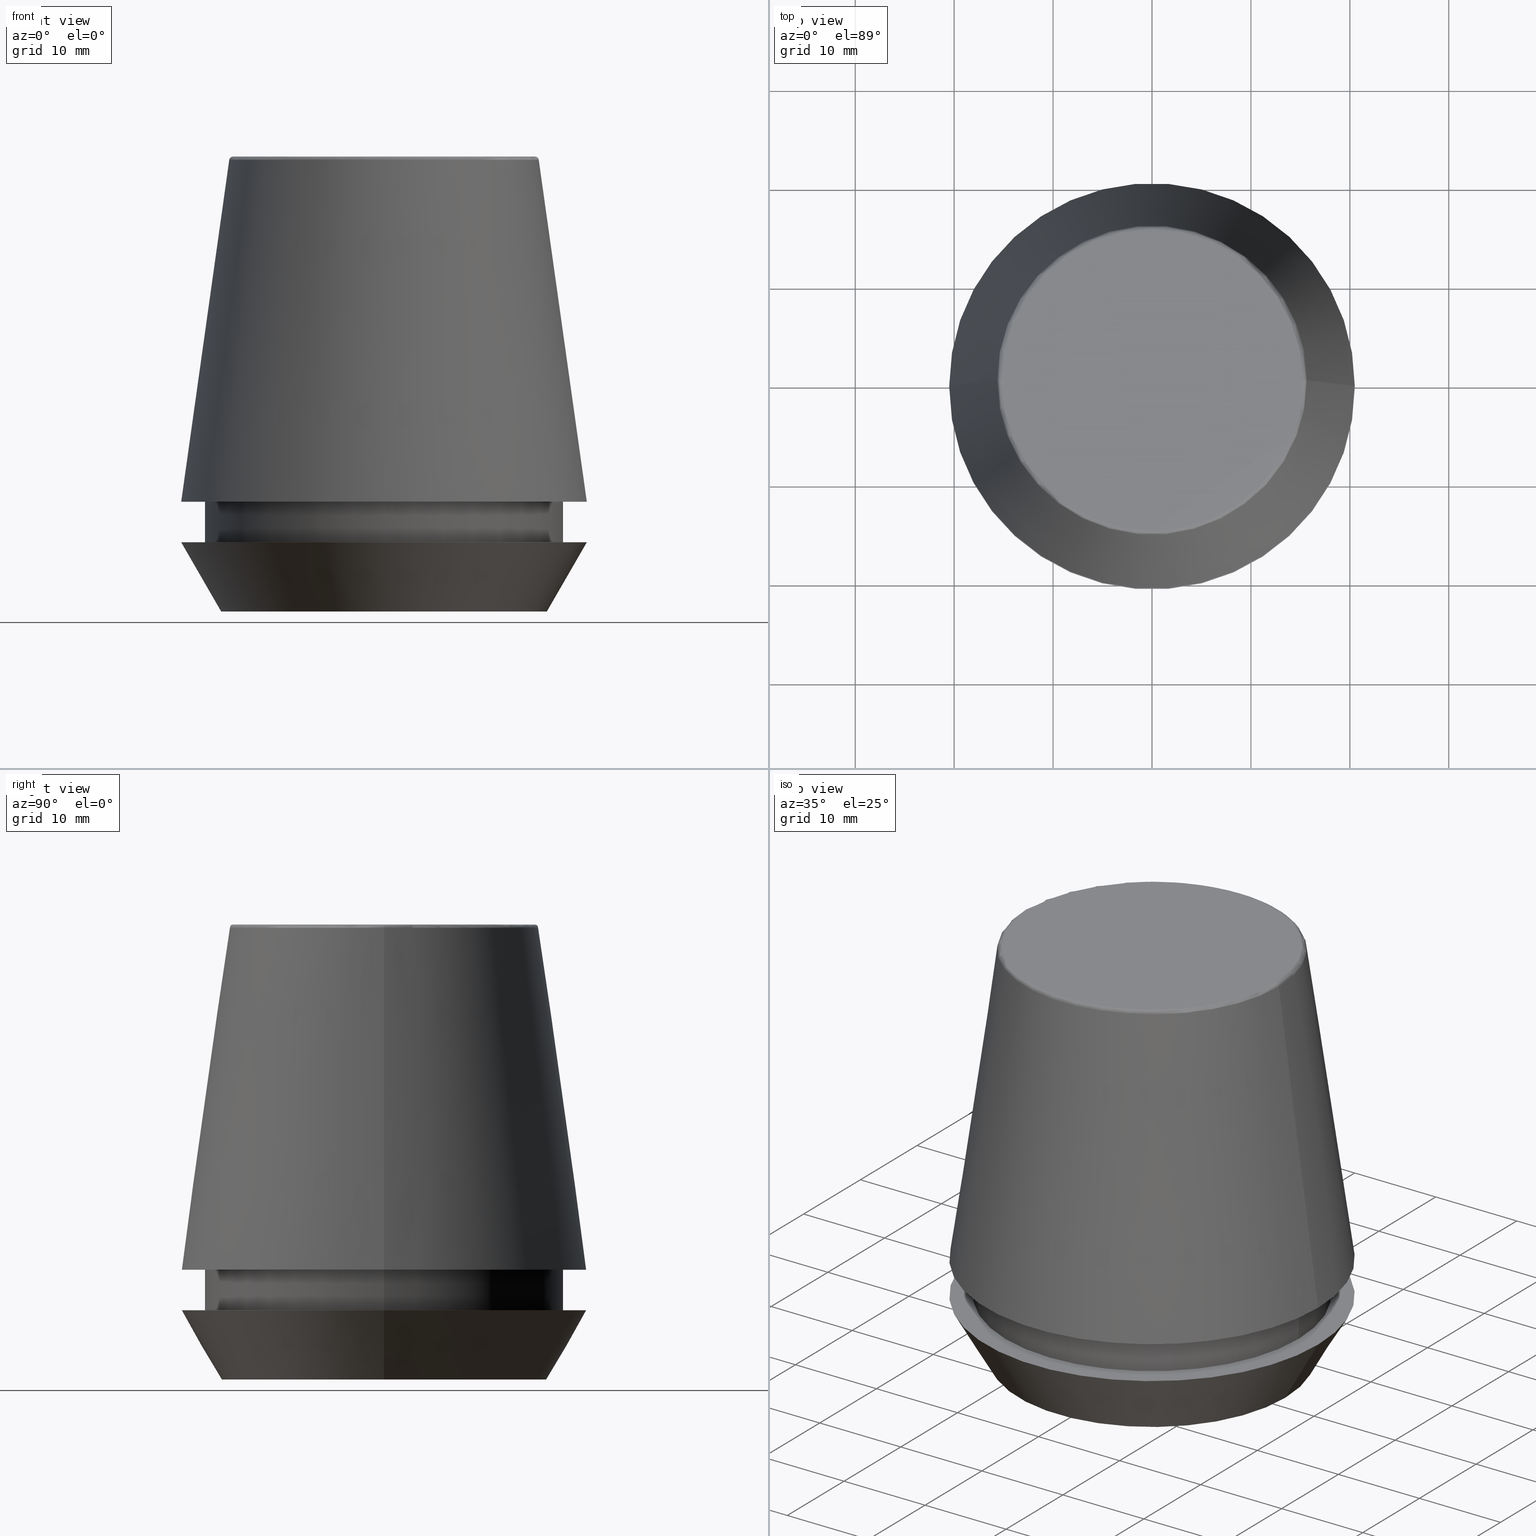
[diagram: canonical four-view strip — front | top / right | iso, engineering-drawing reading convention]
A machine part, canonical four-view strip (front | top / right | iso — engineering-drawing reading convention). The complete STEP part file that produces these views, byte-faithful:
ISO-10303-21;
HEADER;
FILE_DESCRIPTION (( 'STEP AP203' ),
    '1' );
FILE_NAME ('TAP COLLET ER 40G 14.0 X 11.2.STEP',
    '2019-04-10T04:08:17',
    ( '' ),
    ( '' ),
    'SwSTEP 2.0',
    'SolidWorks 2014',
    '' );
FILE_SCHEMA (( 'CONFIG_CONTROL_DESIGN' ));
ENDSEC;

DATA;
#1 = PRODUCT_DEFINITION_SHAPE ( 'NONE', 'NONE',  #54 ) ;
#2 = DIRECTION ( 'NONE',  ( -0.0000000000000000000, -0.0000000000000000000, 1.000000000000000000 ) ) ;
#3 = AXIS2_PLACEMENT_3D ( 'NONE', #215, #59, #275 ) ;
#4 = ORIENTED_EDGE ( 'NONE', *, *, #201, .T. ) ;
#5 = DIRECTION ( 'NONE',  ( -0.0000000000000000000, -0.0000000000000000000, 1.000000000000000000 ) ) ;
#6 = CIRCLE ( 'NONE', #50, 20.50000000000000000 ) ;
#7 = VERTEX_POINT ( 'NONE', #344 ) ;
#8 = DIRECTION ( 'NONE',  ( 1.000000000000000000, 0.0000000000000000000, 0.0000000000000000000 ) ) ;
#9 = APPROVAL_PERSON_ORGANIZATION ( #140, #373, #349 ) ;
#10 = DIRECTION ( 'NONE',  ( -0.0000000000000000000, -0.0000000000000000000, 1.000000000000000000 ) ) ;
#11 = CARTESIAN_POINT ( 'NONE',  ( 18.10000000000000500, 0.0000000000000000000, 46.00000000000000000 ) ) ;
#12 = ADVANCED_FACE ( 'NONE', ( #89 ), #188, .T. ) ;
#13 = ORIENTED_EDGE ( 'NONE', *, *, #21, .T. ) ;
#14 = PLANE ( 'NONE',  #272 ) ;
#15 = EDGE_CURVE ( 'NONE', #26, #80, #262, .T. ) ;
#16 = AXIS2_PLACEMENT_3D ( 'NONE', #133, #154, #8 ) ;
#17 = DIRECTION ( 'NONE',  ( 1.000000000000000000, 0.0000000000000000000, 0.0000000000000000000 ) ) ;
#18 = VERTEX_POINT ( 'NONE', #240 ) ;
#19 = CARTESIAN_POINT ( 'NONE',  ( 18.10000000000000500, 0.0000000000000000000, 11.09999999999999800 ) ) ;
#20 = DIRECTION ( 'NONE',  ( -1.000000000000000000, 0.0000000000000000000, -0.0000000000000000000 ) ) ;
#21 = EDGE_CURVE ( 'NONE', #172, #119, #221, .T. ) ;
#22 = CARTESIAN_POINT ( 'NONE',  ( -16.45854811567268100, 2.263058382549599700E-015, 0.0000000000000000000 ) ) ;
#23 = AXIS2_PLACEMENT_3D ( 'NONE', #254, #378, #20 ) ;
#24 = APPROVAL_ROLE ( '' ) ;
#25 = DIRECTION ( 'NONE',  ( -0.0000000000000000000, -0.0000000000000000000, 1.000000000000000000 ) ) ;
#26 = VERTEX_POINT ( 'NONE', #22 ) ;
#27 = DIRECTION ( 'NONE',  ( 0.0000000000000000000, 0.0000000000000000000, -1.000000000000000000 ) ) ;
#28 = CALENDAR_DATE ( 2019, 10, 4 ) ;
#29 = DIRECTION ( 'NONE',  ( 1.000000000000000000, 0.0000000000000000000, 0.0000000000000000000 ) ) ;
#30 = DIRECTION ( 'NONE',  ( 1.000000000000000000, 0.0000000000000000000, 0.0000000000000000000 ) ) ;
#31 = ADVANCED_FACE ( 'NONE', ( #189, #213 ), #173, .F. ) ;
#32 = EDGE_CURVE ( 'NONE', #42, #158, #261, .T. ) ;
#33 = DIRECTION ( 'NONE',  ( -0.0000000000000000000, -0.0000000000000000000, 1.000000000000000000 ) ) ;
#34 = ORIENTED_EDGE ( 'NONE', *, *, #56, .T. ) ;
#35 = ADVANCED_FACE ( 'NONE', ( #277 ), #63, .F. ) ;
#36 = DIRECTION ( 'NONE',  ( 1.000000000000000000, 0.0000000000000000000, 0.0000000000000000000 ) ) ;
#37 =( LENGTH_UNIT ( ) NAMED_UNIT ( * ) SI_UNIT ( .MILLI., .METRE. ) );
#38 = ORIENTED_EDGE ( 'NONE', *, *, #143, .F. ) ;
#39 = CC_DESIGN_APPROVAL ( #146, ( #181 ) ) ;
#40 = DIRECTION ( 'NONE',  ( 0.0000000000000000000, 0.0000000000000000000, -1.000000000000000000 ) ) ;
#41 = CARTESIAN_POINT ( 'NONE',  ( 0.0000000000000000000, 0.0000000000000000000, 6.999999999999999100 ) ) ;
#42 = VERTEX_POINT ( 'NONE', #19 ) ;
#43 = APPLICATION_PROTOCOL_DEFINITION ( 'international standard', 'config_control_design', 1994, #74 ) ;
#44 = AXIS2_PLACEMENT_3D ( 'NONE', #142, #369, #36 ) ;
#45 = PERSON_AND_ORGANIZATION_ROLE ( 'design_supplier' ) ;
#46 = CARTESIAN_POINT ( 'NONE',  ( 0.0000000000000000000, 0.0000000000000000000, 46.00000000000000000 ) ) ;
#47 = COORDINATED_UNIVERSAL_TIME_OFFSET ( 5, 30, .AHEAD. ) ;
#48 = AXIS2_PLACEMENT_3D ( 'NONE', #169, #94, #202 ) ;
#49 = VERTEX_POINT ( 'NONE', #203 ) ;
#50 = AXIS2_PLACEMENT_3D ( 'NONE', #252, #92, #291 ) ;
#51 = ORIENTED_EDGE ( 'NONE', *, *, #71, .F. ) ;
#52 = EDGE_LOOP ( 'NONE', ( #330, #67 ) ) ;
#53 = AXIS2_PLACEMENT_3D ( 'NONE', #95, #338, #147 ) ;
#54 = PRODUCT_DEFINITION ( 'UNKNOWN', '', #181, #332 ) ;
#55 = CARTESIAN_POINT ( 'NONE',  ( 0.0000000000000000000, 0.0000000000000000000, 0.0000000000000000000 ) ) ;
#56 = EDGE_CURVE ( 'NONE', #80, #18, #6, .T. ) ;
#57 = APPROVAL_DATE_TIME ( #86, #373 ) ;
#58 = DIRECTION ( 'NONE',  ( -0.0000000000000000000, -0.0000000000000000000, 1.000000000000000000 ) ) ;
#59 = DIRECTION ( 'NONE',  ( 0.0000000000000000000, 0.0000000000000000000, -1.000000000000000000 ) ) ;
#60 = DIRECTION ( 'NONE',  ( 0.4999999999999941700, 0.0000000000000000000, 0.8660254037844420400 ) ) ;
#61 = AXIS2_PLACEMENT_3D ( 'NONE', #231, #121, #144 ) ;
#62 = DIRECTION ( 'NONE',  ( -1.000000000000000000, 0.0000000000000000000, -0.0000000000000000000 ) ) ;
#63 = PLANE ( 'NONE',  #64 ) ;
#64 = AXIS2_PLACEMENT_3D ( 'NONE', #206, #40, #62 ) ;
#65 = ORIENTED_EDGE ( 'NONE', *, *, #257, .F. ) ;
#66 = DIRECTION ( 'NONE',  ( -0.0000000000000000000, -0.0000000000000000000, 1.000000000000000000 ) ) ;
#67 = ORIENTED_EDGE ( 'NONE', *, *, #288, .T. ) ;
#68 = AXIS2_PLACEMENT_3D ( 'NONE', #171, #66, #149 ) ;
#69 = PERSON_AND_ORGANIZATION_ROLE ( 'design_owner' ) ;
#70 = ORIENTED_EDGE ( 'NONE', *, *, #237, .F. ) ;
#71 = EDGE_CURVE ( 'NONE', #7, #49, #265, .T. ) ;
#72 = PERSON_AND_ORGANIZATION_ROLE ( 'classification_officer' ) ;
#73 = APPROVAL ( #130, 'UNSPECIFIED' ) ;
#74 = APPLICATION_CONTEXT ( 'configuration controlled 3d designs of mechanical parts and assemblies' ) ;
#75 = DIRECTION ( 'NONE',  ( -0.0000000000000000000, -0.0000000000000000000, 1.000000000000000000 ) ) ;
#76 = CALENDAR_DATE ( 2019, 10, 4 ) ;
#77 = CC_DESIGN_DATE_AND_TIME_ASSIGNMENT ( #123, #260, ( #253 ) ) ;
#78 =( NAMED_UNIT ( * ) SI_UNIT ( $, .STERADIAN. ) SOLID_ANGLE_UNIT ( ) );
#79 = CARTESIAN_POINT ( 'NONE',  ( 0.0000000000000000000, 0.0000000000000000000, 0.0000000000000000000 ) ) ;
#80 = VERTEX_POINT ( 'NONE', #375 ) ;
#81 = DIRECTION ( 'NONE',  ( 1.000000000000000000, 0.0000000000000000000, 0.0000000000000000000 ) ) ;
#82 = ORIENTED_EDGE ( 'NONE', *, *, #102, .T. ) ;
#83 = AXIS2_PLACEMENT_3D ( 'NONE', #331, #58, #87 ) ;
#84 = CARTESIAN_POINT ( 'NONE',  ( 0.0000000000000000000, 0.0000000000000000000, 0.0000000000000000000 ) ) ;
#85 = ADVANCED_FACE ( 'NONE', ( #104 ), #271, .T. ) ;
#86 = DATE_AND_TIME ( #76, #124 ) ;
#87 = DIRECTION ( 'NONE',  ( 1.000000000000000000, 0.0000000000000000000, 0.0000000000000000000 ) ) ;
#88 = CARTESIAN_POINT ( 'NONE',  ( 0.0000000000000000000, 0.0000000000000000000, 6.999999999999999100 ) ) ;
#89 = FACE_OUTER_BOUND ( 'NONE', #298, .T. ) ;
#90 = ORIENTED_EDGE ( 'NONE', *, *, #329, .T. ) ;
#91 = EDGE_LOOP ( 'NONE', ( #244, #273, #4, #236 ) ) ;
#92 = DIRECTION ( 'NONE',  ( -0.0000000000000000000, -0.0000000000000000000, 1.000000000000000000 ) ) ;
#93 = AXIS2_PLACEMENT_3D ( 'NONE', #279, #190, #325 ) ;
#94 = DIRECTION ( 'NONE',  ( -0.0000000000000000000, -0.0000000000000000000, 1.000000000000000000 ) ) ;
#95 = CARTESIAN_POINT ( 'NONE',  ( 0.0000000000000000000, 0.0000000000000000000, 11.09999999999999800 ) ) ;
#96 = EDGE_LOOP ( 'NONE', ( #228, #312, #248, #156 ) ) ;
#97 = ORIENTED_EDGE ( 'NONE', *, *, #15, .T. ) ;
#98 =( GEOMETRIC_REPRESENTATION_CONTEXT ( 3 ) GLOBAL_UNCERTAINTY_ASSIGNED_CONTEXT ( ( #226 ) ) GLOBAL_UNIT_ASSIGNED_CONTEXT ( ( #37, #239, #78 ) ) REPRESENTATION_CONTEXT ( 'NONE', 'WORKASPACE' ) );
#99 = EDGE_LOOP ( 'NONE', ( #122, #97, #323, #223 ) ) ;
#100 = MECHANICAL_CONTEXT ( 'NONE', #74, 'mechanical' ) ;
#101 = APPROVAL_STATUS ( 'not_yet_approved' ) ;
#102 = EDGE_CURVE ( 'NONE', #138, #18, #256, .T. ) ;
#103 = ORIENTED_EDGE ( 'NONE', *, *, #383, .F. ) ;
#104 = FACE_OUTER_BOUND ( 'NONE', #91, .T. ) ;
#105 = CARTESIAN_POINT ( 'NONE',  ( 0.0000000000000000000, 20.50032537154048700, 11.09999999999999800 ) ) ;
#106 = DIRECTION ( 'NONE',  ( 0.1391731009600587200, 1.704378926181473400E-017, -0.9902680687415712500 ) ) ;
#107 = DIRECTION ( 'NONE',  ( 0.0000000000000000000, -1.000000000000000000, 0.0000000000000000000 ) ) ;
#108 = PERSON_AND_ORGANIZATION ( #115, #341 ) ;
#109 = VERTEX_POINT ( 'NONE', #335 ) ;
#110 = DIRECTION ( 'NONE',  ( -0.0000000000000000000, -0.0000000000000000000, 1.000000000000000000 ) ) ;
#111 = DIRECTION ( 'NONE',  ( 1.000000000000000000, 0.0000000000000000000, 0.0000000000000000000 ) ) ;
#112 = AXIS2_PLACEMENT_3D ( 'NONE', #282, #10, #81 ) ;
#113 = CARTESIAN_POINT ( 'NONE',  ( 0.0000000000000000000, 0.0000000000000000000, 0.0000000000000000000 ) ) ;
#114 = ADVANCED_FACE ( 'NONE', ( #269 ), #374, .T. ) ;
#115 = PERSON ( 'UNSPECIFIED', 'UNSPECIFIED', 'UNSPECIFIED', ('UNSPECIFIED'), ('UNSPECIFIED'), ('UNSPECIFIED') ) ;
#116 = DIRECTION ( 'NONE',  ( -0.0000000000000000000, -0.0000000000000000000, 1.000000000000000000 ) ) ;
#117 = ORIENTED_EDGE ( 'NONE', *, *, #210, .T. ) ;
#118 = CARTESIAN_POINT ( 'NONE',  ( -20.50032537154048700, 0.0000000000000000000, 11.09999999999999800 ) ) ;
#119 = VERTEX_POINT ( 'NONE', #287 ) ;
#120 = DIRECTION ( 'NONE',  ( -0.0000000000000000000, -0.0000000000000000000, 1.000000000000000000 ) ) ;
#121 = DIRECTION ( 'NONE',  ( 1.224646799147353200E-016, 1.000000000000000000, 0.0000000000000000000 ) ) ;
#122 = ORIENTED_EDGE ( 'NONE', *, *, #380, .T. ) ;
#123 = DATE_AND_TIME ( #350, #204 ) ;
#124 = LOCAL_TIME ( 9, 38, 17.00000000000000000, #47 ) ;
#125 = CC_DESIGN_PERSON_AND_ORGANIZATION_ASSIGNMENT ( #362, #69, ( #339 ) ) ;
#126 = DIRECTION ( 'NONE',  ( -0.0000000000000000000, -0.0000000000000000000, 1.000000000000000000 ) ) ;
#127 = VERTEX_POINT ( 'NONE', #200 ) ;
#128 = DIRECTION ( 'NONE',  ( 1.000000000000000000, 0.0000000000000000000, 0.0000000000000000000 ) ) ;
#129 = EDGE_LOOP ( 'NONE', ( #38, #13, #386, #302 ) ) ;
#130 = APPROVAL_STATUS ( 'not_yet_approved' ) ;
#131 = AXIS2_PLACEMENT_3D ( 'NONE', #224, #2, #30 ) ;
#132 = CARTESIAN_POINT ( 'NONE',  ( 15.64384277279740400, 2.213191991290356800E-015, 45.65566924038402900 ) ) ;
#133 = CARTESIAN_POINT ( 'NONE',  ( 0.0000000000000000000, 0.0000000000000000000, 11.09999999999999800 ) ) ;
#134 = DATE_AND_TIME ( #28, #376 ) ;
#135 = ORIENTED_EDGE ( 'NONE', *, *, #380, .F. ) ;
#136 = APPROVAL_DATE_TIME ( #134, #146 ) ;
#137 = CC_DESIGN_PERSON_AND_ORGANIZATION_ASSIGNMENT ( #358, #212, ( #181 ) ) ;
#138 = VERTEX_POINT ( 'NONE', #249 ) ;
#139 = EDGE_CURVE ( 'NONE', #7, #127, #268, .T. ) ;
#140 = PERSON_AND_ORGANIZATION ( #115, #341 ) ;
#141 = AXIS2_PLACEMENT_3D ( 'NONE', #357, #33, #29 ) ;
#142 = CARTESIAN_POINT ( 'NONE',  ( 0.0000000000000000000, 0.0000000000000000000, 45.65566924038402900 ) ) ;
#143 = EDGE_CURVE ( 'NONE', #172, #7, #281, .T. ) ;
#144 = DIRECTION ( 'NONE',  ( -1.000000000000000000, 1.224646799147353900E-016, 0.0000000000000000000 ) ) ;
#145 = COORDINATED_UNIVERSAL_TIME_OFFSET ( 5, 30, .AHEAD. ) ;
#146 = APPROVAL ( #180, 'UNSPECIFIED' ) ;
#147 = DIRECTION ( 'NONE',  ( 1.000000000000000000, 0.0000000000000000000, 0.0000000000000000000 ) ) ;
#148 = DIRECTION ( 'NONE',  ( 1.000000000000000000, 0.0000000000000000000, 0.0000000000000000000 ) ) ;
#149 = DIRECTION ( 'NONE',  ( 1.000000000000000000, 0.0000000000000000000, 0.0000000000000000000 ) ) ;
#150 = PRODUCT_RELATED_PRODUCT_CATEGORY ( 'detail', '', ( #339 ) ) ;
#151 = PERSON_AND_ORGANIZATION_ROLE ( 'creator' ) ;
#152 = CARTESIAN_POINT ( 'NONE',  ( -18.10000000000000500, 2.216610706456710000E-015, 11.09999999999999800 ) ) ;
#153 = DIRECTION ( 'NONE',  ( -0.0000000000000000000, -0.0000000000000000000, 1.000000000000000000 ) ) ;
#154 = DIRECTION ( 'NONE',  ( -0.0000000000000000000, -0.0000000000000000000, 1.000000000000000000 ) ) ;
#155 = ADVANCED_BREP_SHAPE_REPRESENTATION ( 'TAP COLLET ER 40G 14.0 X 11.2', ( #170, #381 ), #98 ) ;
#156 = ORIENTED_EDGE ( 'NONE', *, *, #210, .F. ) ;
#157 = AXIS2_PLACEMENT_3D ( 'NONE', #88, #116, #333 ) ;
#158 = VERTEX_POINT ( 'NONE', #152 ) ;
#159 = ORIENTED_EDGE ( 'NONE', *, *, #337, .T. ) ;
#160 = EDGE_LOOP ( 'NONE', ( #51, #159, #117, #182 ) ) ;
#161 = CC_DESIGN_PERSON_AND_ORGANIZATION_ASSIGNMENT ( #355, #72, ( #253 ) ) ;
#162 = VECTOR ( 'NONE', #305, 1000.000000000000000 ) ;
#163 = ADVANCED_FACE ( 'NONE', ( #280 ), #293, .T. ) ;
#164 = PLANE ( 'NONE',  #351 ) ;
#165 = ORIENTED_EDGE ( 'NONE', *, *, #201, .F. ) ;
#166 = CARTESIAN_POINT ( 'NONE',  ( 0.0000000000000000000, 0.0000000000000000000, 11.09999999999999800 ) ) ;
#167 = CARTESIAN_POINT ( 'NONE',  ( 0.0000000000000000000, 0.0000000000000000000, 45.60000000000000100 ) ) ;
#168 = ORIENTED_EDGE ( 'NONE', *, *, #321, .T. ) ;
#169 = CARTESIAN_POINT ( 'NONE',  ( 0.0000000000000000000, 0.0000000000000000000, 46.00000000000000000 ) ) ;
#170 = MANIFOLD_SOLID_BREP ( 'Revolve1', #343 ) ;
#171 = CARTESIAN_POINT ( 'NONE',  ( 0.0000000000000000000, 0.0000000000000000000, 46.00000000000000000 ) ) ;
#172 = VERTEX_POINT ( 'NONE', #132 ) ;
#173 = PLANE ( 'NONE',  #23 ) ;
#174 = ORIENTED_EDGE ( 'NONE', *, *, #303, .F. ) ;
#175 = ADVANCED_FACE ( 'NONE', ( #292 ), #296, .T. ) ;
#176 = AXIS2_PLACEMENT_3D ( 'NONE', #232, #299, #148 ) ;
#177 = DIRECTION ( 'NONE',  ( -1.000000000000000000, 0.0000000000000000000, 0.0000000000000000000 ) ) ;
#178 = PERSON_AND_ORGANIZATION ( #115, #341 ) ;
#179 = DIRECTION ( 'NONE',  ( 0.0000000000000000000, -0.0000000000000000000, 1.000000000000000000 ) ) ;
#180 = APPROVAL_STATUS ( 'not_yet_approved' ) ;
#181 = PRODUCT_DEFINITION_FORMATION_WITH_SPECIFIED_SOURCE ( 'ANY', '', #339, .NOT_KNOWN. ) ;
#182 = ORIENTED_EDGE ( 'NONE', *, *, #385, .F. ) ;
#183 = ORIENTED_EDGE ( 'NONE', *, *, #267, .T. ) ;
#184 = ORIENTED_EDGE ( 'NONE', *, *, #329, .F. ) ;
#185 = ORIENTED_EDGE ( 'NONE', *, *, #303, .T. ) ;
#186 = DATE_AND_TIME ( #220, #207 ) ;
#187 = DIRECTION ( 'NONE',  ( 0.0000000000000000000, 0.0000000000000000000, -1.000000000000000000 ) ) ;
#188 = CYLINDRICAL_SURFACE ( 'NONE', #68, 18.10000000000000500 ) ;
#189 = FACE_BOUND ( 'NONE', #209, .T. ) ;
#190 = DIRECTION ( 'NONE',  ( -0.0000000000000000000, -0.0000000000000000000, 1.000000000000000000 ) ) ;
#191 = PERSON_AND_ORGANIZATION ( #115, #341 ) ;
#192 = EDGE_LOOP ( 'NONE', ( #198, #34 ) ) ;
#193 = CARTESIAN_POINT ( 'NONE',  ( -18.10000000000000100, 2.216610706456709600E-015, 6.999999999999999100 ) ) ;
#194 = ADVANCED_FACE ( 'NONE', ( #290 ), #300, .T. ) ;
#195 = CARTESIAN_POINT ( 'NONE',  ( -18.10000000000000500, 2.216610706456710000E-015, 46.00000000000000000 ) ) ;
#196 = VECTOR ( 'NONE', #60, 1000.000000000000000 ) ;
#197 = AXIS2_PLACEMENT_3D ( 'NONE', #41, #75, #270 ) ;
#198 = ORIENTED_EDGE ( 'NONE', *, *, #347, .T. ) ;
#199 = ORIENTED_EDGE ( 'NONE', *, *, #56, .F. ) ;
#200 = CARTESIAN_POINT ( 'NONE',  ( -20.50032537154048700, 0.0000000000000000000, 11.09999999999999800 ) ) ;
#201 = EDGE_CURVE ( 'NONE', #109, #42, #284, .T. ) ;
#202 = DIRECTION ( 'NONE',  ( 1.000000000000000000, 0.0000000000000000000, 0.0000000000000000000 ) ) ;
#203 = CARTESIAN_POINT ( 'NONE',  ( -15.24773554530077600, 1.891563625393435400E-015, 46.00000000000000000 ) ) ;
#204 = LOCAL_TIME ( 9, 38, 17.00000000000000000, #145 ) ;
#205 = CC_DESIGN_DATE_AND_TIME_ASSIGNMENT ( #186, #384, ( #54 ) ) ;
#206 = CARTESIAN_POINT ( 'NONE',  ( 0.0000000000000000000, 15.24773554530077600, 46.00000000000000000 ) ) ;
#207 = LOCAL_TIME ( 9, 38, 17.00000000000000000, #235 ) ;
#208 = VECTOR ( 'NONE', #106, 1000.000000000000000 ) ;
#209 = EDGE_LOOP ( 'NONE', ( #174, #65 ) ) ;
#210 = EDGE_CURVE ( 'NONE', #172, #250, #294, .T. ) ;
#211 = AXIS2_PLACEMENT_3D ( 'NONE', #166, #27, #177 ) ;
#212 = PERSON_AND_ORGANIZATION_ROLE ( 'creator' ) ;
#213 = FACE_OUTER_BOUND ( 'NONE', #192, .T. ) ;
#214 = EDGE_LOOP ( 'NONE', ( #219, #90, #82, #199 ) ) ;
#215 = CARTESIAN_POINT ( 'NONE',  ( 0.0000000000000000000, 0.0000000000000000000, 11.09999999999999800 ) ) ;
#216 = ORIENTED_EDGE ( 'NONE', *, *, #337, .F. ) ;
#217 = VERTEX_POINT ( 'NONE', #193 ) ;
#218 = AXIS2_PLACEMENT_3D ( 'NONE', #46, #126, #255 ) ;
#219 = ORIENTED_EDGE ( 'NONE', *, *, #15, .F. ) ;
#220 = CALENDAR_DATE ( 2019, 10, 4 ) ;
#221 = LINE ( 'NONE', #234, #208 ) ;
#222 = FACE_OUTER_BOUND ( 'NONE', #336, .T. ) ;
#223 = ORIENTED_EDGE ( 'NONE', *, *, #102, .F. ) ;
#224 = CARTESIAN_POINT ( 'NONE',  ( 0.0000000000000000000, 0.0000000000000000000, 46.00000000000000000 ) ) ;
#225 = DIRECTION ( 'NONE',  ( 0.0000000000000000000, 0.0000000000000000000, 1.000000000000000000 ) ) ;
#226 = UNCERTAINTY_MEASURE_WITH_UNIT (LENGTH_MEASURE( 1.000000000000000100E-005 ), #37, 'distance_accuracy_value', 'NONE');
#227 = ADVANCED_FACE ( 'NONE', ( #222 ), #164, .F. ) ;
#228 = ORIENTED_EDGE ( 'NONE', *, *, #143, .T. ) ;
#229 = ADVANCED_FACE ( 'NONE', ( #297 ), #304, .T. ) ;
#230 = DIRECTION ( 'NONE',  ( -0.1391731009600587200, 0.0000000000000000000, -0.9902680687415712500 ) ) ;
#231 = CARTESIAN_POINT ( 'NONE',  ( -15.24773554530077600, 1.867309052979791600E-015, 45.60000000000000100 ) ) ;
#232 = CARTESIAN_POINT ( 'NONE',  ( 0.0000000000000000000, 0.0000000000000000000, 11.09999999999999800 ) ) ;
#233 = ORIENTED_EDGE ( 'NONE', *, *, #32, .F. ) ;
#234 = CARTESIAN_POINT ( 'NONE',  ( 20.50032537154048700, 2.510565784773633700E-015, 11.09999999999999800 ) ) ;
#235 = COORDINATED_UNIVERSAL_TIME_OFFSET ( 5, 30, .AHEAD. ) ;
#236 = ORIENTED_EDGE ( 'NONE', *, *, #288, .F. ) ;
#237 = EDGE_CURVE ( 'NONE', #119, #127, #301, .T. ) ;
#238 = SECURITY_CLASSIFICATION_LEVEL ( 'unclassified' ) ;
#239 =( NAMED_UNIT ( * ) PLANE_ANGLE_UNIT ( ) SI_UNIT ( $, .RADIAN. ) );
#240 = CARTESIAN_POINT ( 'NONE',  ( 20.50000000000000000, 0.0000000000000000000, 7.000000000000006200 ) ) ;
#241 = ORIENTED_EDGE ( 'NONE', *, *, #385, .T. ) ;
#242 = CC_DESIGN_APPROVAL ( #73, ( #54 ) ) ;
#243 = DIRECTION ( 'NONE',  ( 1.000000000000000000, 0.0000000000000000000, 0.0000000000000000000 ) ) ;
#244 = ORIENTED_EDGE ( 'NONE', *, *, #267, .F. ) ;
#245 = AXIS2_PLACEMENT_3D ( 'NONE', #84, #251, #264 ) ;
#246 = DIRECTION ( 'NONE',  ( -0.0000000000000000000, -0.0000000000000000000, 1.000000000000000000 ) ) ;
#247 = AXIS2_PLACEMENT_3D ( 'NONE', #79, #110, #274 ) ;
#248 = ORIENTED_EDGE ( 'NONE', *, *, #321, .F. ) ;
#249 = CARTESIAN_POINT ( 'NONE',  ( 16.45854811567268100, 0.0000000000000000000, 0.0000000000000000000 ) ) ;
#250 = VERTEX_POINT ( 'NONE', #266 ) ;
#251 = DIRECTION ( 'NONE',  ( -0.0000000000000000000, -0.0000000000000000000, 1.000000000000000000 ) ) ;
#252 = CARTESIAN_POINT ( 'NONE',  ( 0.0000000000000000000, 0.0000000000000000000, 7.000000000000006200 ) ) ;
#253 = SECURITY_CLASSIFICATION ( '', '', #238 ) ;
#254 = CARTESIAN_POINT ( 'NONE',  ( 0.0000000000000000000, 20.50000000000000000, 7.000000000000002700 ) ) ;
#255 = DIRECTION ( 'NONE',  ( 1.000000000000000000, 0.0000000000000000000, 0.0000000000000000000 ) ) ;
#256 = LINE ( 'NONE', #289, #196 ) ;
#257 = EDGE_CURVE ( 'NONE', #217, #109, #310, .T. ) ;
#258 = APPLICATION_CONTEXT ( 'configuration controlled 3d designs of mechanical parts and assemblies' ) ;
#259 = CC_DESIGN_SECURITY_CLASSIFICATION ( #253, ( #181 ) ) ;
#260 = DATE_TIME_ROLE ( 'classification_date' ) ;
#261 = CIRCLE ( 'NONE', #53, 18.10000000000000500 ) ;
#262 = LINE ( 'NONE', #308, #162 ) ;
#263 = EDGE_LOOP ( 'NONE', ( #168, #241 ) ) ;
#264 = DIRECTION ( 'NONE',  ( 1.000000000000000000, 0.0000000000000000000, 0.0000000000000000000 ) ) ;
#265 = CIRCLE ( 'NONE', #61, 0.3999999999999975800 ) ;
#266 = CARTESIAN_POINT ( 'NONE',  ( 15.24773554530077600, 0.0000000000000000000, 46.00000000000000000 ) ) ;
#267 = EDGE_CURVE ( 'NONE', #217, #158, #306, .T. ) ;
#268 = LINE ( 'NONE', #118, #283 ) ;
#269 = FACE_OUTER_BOUND ( 'NONE', #96, .T. ) ;
#270 = DIRECTION ( 'NONE',  ( 1.000000000000000000, 0.0000000000000000000, 0.0000000000000000000 ) ) ;
#271 = CYLINDRICAL_SURFACE ( 'NONE', #48, 18.10000000000000500 ) ;
#272 = AXIS2_PLACEMENT_3D ( 'NONE', #105, #179, #128 ) ;
#273 = ORIENTED_EDGE ( 'NONE', *, *, #257, .T. ) ;
#274 = DIRECTION ( 'NONE',  ( 1.000000000000000000, 0.0000000000000000000, 0.0000000000000000000 ) ) ;
#275 = DIRECTION ( 'NONE',  ( -1.000000000000000000, 0.0000000000000000000, 0.0000000000000000000 ) ) ;
#276 = DIRECTION ( 'NONE',  ( 0.0000000000000000000, -0.0000000000000000000, 1.000000000000000000 ) ) ;
#277 = FACE_OUTER_BOUND ( 'NONE', #263, .T. ) ;
#278 = CC_DESIGN_PERSON_AND_ORGANIZATION_ASSIGNMENT ( #191, #151, ( #54 ) ) ;
#279 = CARTESIAN_POINT ( 'NONE',  ( 0.0000000000000000000, 0.0000000000000000000, 0.0000000000000000000 ) ) ;
#280 = FACE_OUTER_BOUND ( 'NONE', #360, .T. ) ;
#281 = CIRCLE ( 'NONE', #44, 15.64384277279740400 ) ;
#282 = CARTESIAN_POINT ( 'NONE',  ( 0.0000000000000000000, 0.0000000000000000000, 11.09999999999999800 ) ) ;
#283 = VECTOR ( 'NONE', #230, 1000.000000000000000 ) ;
#284 = LINE ( 'NONE', #11, #286 ) ;
#285 = CIRCLE ( 'NONE', #176, 18.10000000000000500 ) ;
#286 = VECTOR ( 'NONE', #246, 1000.000000000000000 ) ;
#287 = CARTESIAN_POINT ( 'NONE',  ( 20.50032537154048700, 2.510565784773633700E-015, 11.09999999999999800 ) ) ;
#288 = EDGE_CURVE ( 'NONE', #158, #42, #285, .T. ) ;
#289 = CARTESIAN_POINT ( 'NONE',  ( 16.45854811567268100, 0.0000000000000000000, 0.0000000000000000000 ) ) ;
#290 = FACE_OUTER_BOUND ( 'NONE', #214, .T. ) ;
#291 = DIRECTION ( 'NONE',  ( 1.000000000000000000, 0.0000000000000000000, 0.0000000000000000000 ) ) ;
#292 = FACE_OUTER_BOUND ( 'NONE', #99, .T. ) ;
#293 = CONICAL_SURFACE ( 'NONE', #3, 20.50032537154048700, 0.1396263401595396200 ) ;
#294 = CIRCLE ( 'NONE', #364, 0.3999999999999975800 ) ;
#295 = DIRECTION ( 'NONE',  ( 1.000000000000000000, 0.0000000000000000000, 0.0000000000000000000 ) ) ;
#296 = CONICAL_SURFACE ( 'NONE', #83, 16.45854811567268100, 0.5235987755982921500 ) ;
#297 = FACE_OUTER_BOUND ( 'NONE', #160, .T. ) ;
#298 = EDGE_LOOP ( 'NONE', ( #185, #183, #233, #165 ) ) ;
#299 = DIRECTION ( 'NONE',  ( -0.0000000000000000000, -0.0000000000000000000, 1.000000000000000000 ) ) ;
#300 = CONICAL_SURFACE ( 'NONE', #245, 16.45854811567268100, 0.5235987755982921500 ) ;
#301 = CIRCLE ( 'NONE', #16, 20.50032537154048700 ) ;
#302 = ORIENTED_EDGE ( 'NONE', *, *, #139, .F. ) ;
#303 = EDGE_CURVE ( 'NONE', #109, #217, #315, .T. ) ;
#304 = TOROIDAL_SURFACE ( 'NONE', #141, 15.24773554530077600, 0.3999999999999991900 ) ;
#305 = DIRECTION ( 'NONE',  ( -0.4999999999999941700, 6.123233995736694500E-017, 0.8660254037844420400 ) ) ;
#306 = LINE ( 'NONE', #195, #313 ) ;
#307 = AXIS2_PLACEMENT_3D ( 'NONE', #356, #153, #295 ) ;
#308 = CARTESIAN_POINT ( 'NONE',  ( -16.45854811567268100, 2.015590826847124800E-015, 0.0000000000000000000 ) ) ;
#309 = APPLICATION_PROTOCOL_DEFINITION ( 'international standard', 'config_control_design', 1994, #258 ) ;
#310 = CIRCLE ( 'NONE', #157, 18.10000000000000100 ) ;
#311 = CIRCLE ( 'NONE', #218, 15.24773554530077600 ) ;
#312 = ORIENTED_EDGE ( 'NONE', *, *, #71, .T. ) ;
#313 = VECTOR ( 'NONE', #5, 1000.000000000000000 ) ;
#314 = CC_DESIGN_PERSON_AND_ORGANIZATION_ASSIGNMENT ( #108, #45, ( #181 ) ) ;
#315 = CIRCLE ( 'NONE', #197, 18.10000000000000100 ) ;
#316 = EDGE_LOOP ( 'NONE', ( #103, #70 ) ) ;
#317 = CIRCLE ( 'NONE', #334, 20.50000000000000000 ) ;
#318 = CIRCLE ( 'NONE', #247, 16.45854811567268100 ) ;
#319 = FACE_OUTER_BOUND ( 'NONE', #129, .T. ) ;
#320 = FACE_BOUND ( 'NONE', #52, .T. ) ;
#321 = EDGE_CURVE ( 'NONE', #250, #49, #311, .T. ) ;
#322 = CC_DESIGN_APPROVAL ( #373, ( #253 ) ) ;
#323 = ORIENTED_EDGE ( 'NONE', *, *, #347, .F. ) ;
#324 = FACE_OUTER_BOUND ( 'NONE', #316, .T. ) ;
#325 = DIRECTION ( 'NONE',  ( 1.000000000000000000, 0.0000000000000000000, 0.0000000000000000000 ) ) ;
#326 = CIRCLE ( 'NONE', #307, 15.64384277279740400 ) ;
#327 = ADVANCED_FACE ( 'NONE', ( #324, #320 ), #14, .F. ) ;
#328 = CIRCLE ( 'NONE', #93, 16.45854811567268100 ) ;
#329 = EDGE_CURVE ( 'NONE', #26, #138, #318, .T. ) ;
#330 = ORIENTED_EDGE ( 'NONE', *, *, #32, .T. ) ;
#331 = CARTESIAN_POINT ( 'NONE',  ( 0.0000000000000000000, 0.0000000000000000000, 0.0000000000000000000 ) ) ;
#332 = DESIGN_CONTEXT ( 'detailed design', #258, 'design' ) ;
#333 = DIRECTION ( 'NONE',  ( 1.000000000000000000, 0.0000000000000000000, 0.0000000000000000000 ) ) ;
#334 = AXIS2_PLACEMENT_3D ( 'NONE', #367, #25, #111 ) ;
#335 = CARTESIAN_POINT ( 'NONE',  ( 18.10000000000000100, 0.0000000000000000000, 6.999999999999999100 ) ) ;
#336 = EDGE_LOOP ( 'NONE', ( #135, #184 ) ) ;
#337 = EDGE_CURVE ( 'NONE', #7, #172, #326, .T. ) ;
#338 = DIRECTION ( 'NONE',  ( -0.0000000000000000000, -0.0000000000000000000, 1.000000000000000000 ) ) ;
#339 = PRODUCT ( 'TAP COLLET ER 40G 14.0 X 11.2', 'TAP COLLET ER 40G 14.0 X 11.2', '', ( #100 ) ) ;
#340 = CONICAL_SURFACE ( 'NONE', #211, 20.50032537154048700, 0.1396263401595396200 ) ;
#341 = ORGANIZATION ( 'UNSPECIFIED', 'UNSPECIFIED', '' ) ;
#342 = SHAPE_DEFINITION_REPRESENTATION ( #1, #155 ) ;
#343 = CLOSED_SHELL ( 'NONE', ( #114, #366, #12, #175, #227, #194, #31, #85, #327, #163, #229, #35 ) ) ;
#344 = CARTESIAN_POINT ( 'NONE',  ( -15.64384277279740400, 0.0000000000000000000, 45.65566924038402900 ) ) ;
#345 = CIRCLE ( 'NONE', #131, 15.24773554530077600 ) ;
#346 = ORIENTED_EDGE ( 'NONE', *, *, #21, .F. ) ;
#347 = EDGE_CURVE ( 'NONE', #18, #80, #317, .T. ) ;
#348 = APPROVAL_ROLE ( '' ) ;
#349 = APPROVAL_ROLE ( '' ) ;
#350 = CALENDAR_DATE ( 2019, 10, 4 ) ;
#351 = AXIS2_PLACEMENT_3D ( 'NONE', #113, #276, #243 ) ;
#352 = CALENDAR_DATE ( 2019, 10, 4 ) ;
#353 = LOCAL_TIME ( 9, 38, 17.00000000000000000, #354 ) ;
#354 = COORDINATED_UNIVERSAL_TIME_OFFSET ( 5, 30, .AHEAD. ) ;
#355 = PERSON_AND_ORGANIZATION ( #115, #341 ) ;
#356 = CARTESIAN_POINT ( 'NONE',  ( 0.0000000000000000000, 0.0000000000000000000, 45.65566924038402900 ) ) ;
#357 = CARTESIAN_POINT ( 'NONE',  ( 0.0000000000000000000, 0.0000000000000000000, 45.60000000000000100 ) ) ;
#358 = PERSON_AND_ORGANIZATION ( #115, #341 ) ;
#359 = APPROVAL_PERSON_ORGANIZATION ( #361, #73, #348 ) ;
#360 = EDGE_LOOP ( 'NONE', ( #346, #216, #372, #363 ) ) ;
#361 = PERSON_AND_ORGANIZATION ( #115, #341 ) ;
#362 = PERSON_AND_ORGANIZATION ( #115, #341 ) ;
#363 = ORIENTED_EDGE ( 'NONE', *, *, #383, .T. ) ;
#364 = AXIS2_PLACEMENT_3D ( 'NONE', #365, #107, #187 ) ;
#365 = CARTESIAN_POINT ( 'NONE',  ( 15.24773554530077600, 0.0000000000000000000, 45.60000000000000100 ) ) ;
#366 = ADVANCED_FACE ( 'NONE', ( #319 ), #340, .T. ) ;
#367 = CARTESIAN_POINT ( 'NONE',  ( 0.0000000000000000000, 0.0000000000000000000, 7.000000000000006200 ) ) ;
#368 = DATE_AND_TIME ( #352, #353 ) ;
#369 = DIRECTION ( 'NONE',  ( -0.0000000000000000000, -0.0000000000000000000, 1.000000000000000000 ) ) ;
#370 = APPROVAL_DATE_TIME ( #368, #73 ) ;
#371 = CIRCLE ( 'NONE', #112, 20.50032537154048700 ) ;
#372 = ORIENTED_EDGE ( 'NONE', *, *, #139, .T. ) ;
#373 = APPROVAL ( #101, 'UNSPECIFIED' ) ;
#374 = TOROIDAL_SURFACE ( 'NONE', #379, 15.24773554530077600, 0.3999999999999991900 ) ;
#375 = CARTESIAN_POINT ( 'NONE',  ( -20.50000000000000000, 2.510525938252074100E-015, 7.000000000000006200 ) ) ;
#376 = LOCAL_TIME ( 9, 38, 17.00000000000000000, #377 ) ;
#377 = COORDINATED_UNIVERSAL_TIME_OFFSET ( 5, 30, .AHEAD. ) ;
#378 = DIRECTION ( 'NONE',  ( 0.0000000000000000000, 0.0000000000000000000, -1.000000000000000000 ) ) ;
#379 = AXIS2_PLACEMENT_3D ( 'NONE', #167, #120, #17 ) ;
#380 = EDGE_CURVE ( 'NONE', #138, #26, #328, .T. ) ;
#381 = AXIS2_PLACEMENT_3D ( 'NONE', #55, #225, #387 ) ;
#382 = APPROVAL_PERSON_ORGANIZATION ( #178, #146, #24 ) ;
#383 = EDGE_CURVE ( 'NONE', #127, #119, #371, .T. ) ;
#384 = DATE_TIME_ROLE ( 'creation_date' ) ;
#385 = EDGE_CURVE ( 'NONE', #49, #250, #345, .T. ) ;
#386 = ORIENTED_EDGE ( 'NONE', *, *, #237, .T. ) ;
#387 = DIRECTION ( 'NONE',  ( 1.000000000000000000, 0.0000000000000000000, 0.0000000000000000000 ) ) ;
ENDSEC;
END-ISO-10303-21;
